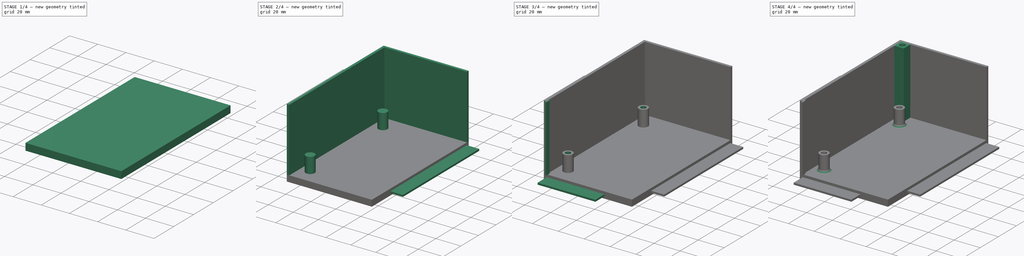
[diagram: build sequence overview — one tinted view per stage of 4, left to right]
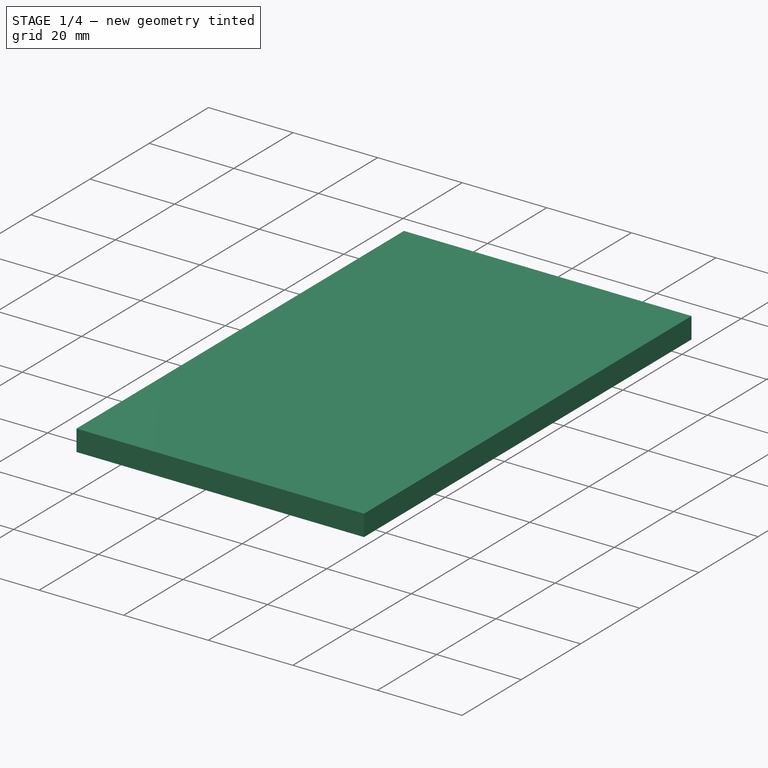
[diagram: stage 1 of 4 — iso view after this stage's code; geometry added in this stage tinted green]
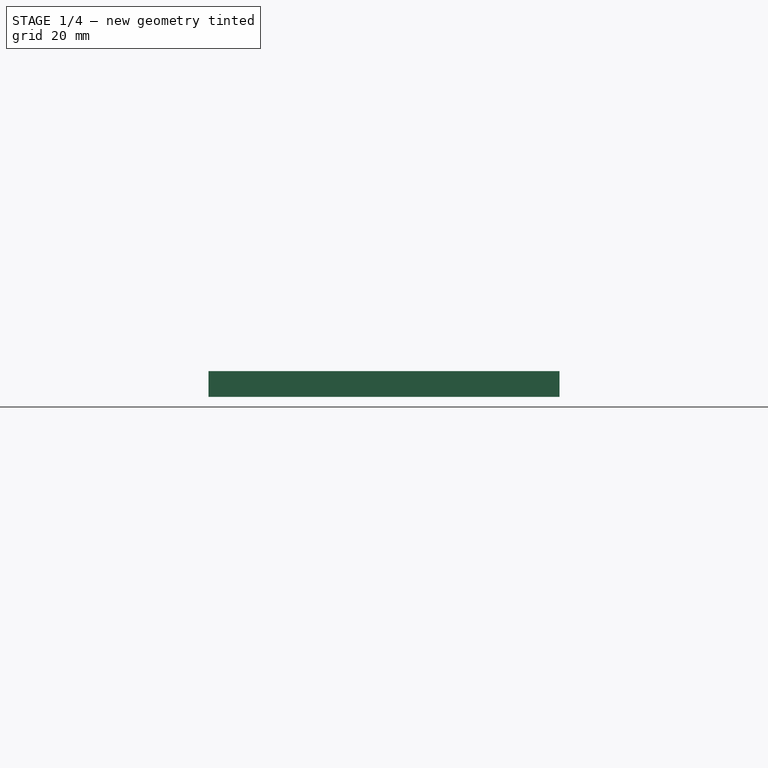
[diagram: stage 1 of 4 — front view after this stage's code; geometry added in this stage tinted green]
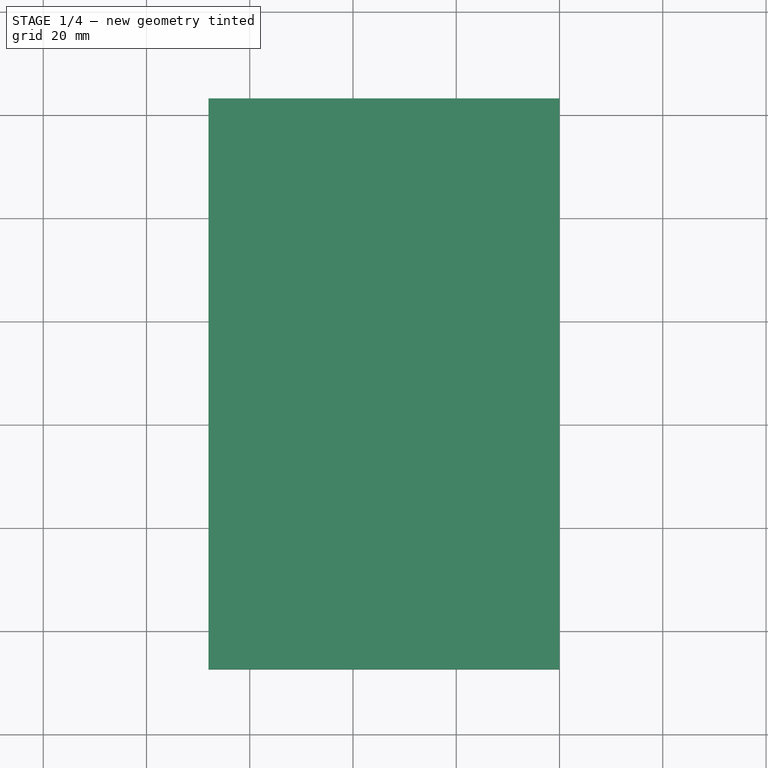
[diagram: stage 1 of 4 — top view after this stage's code; geometry added in this stage tinted green]
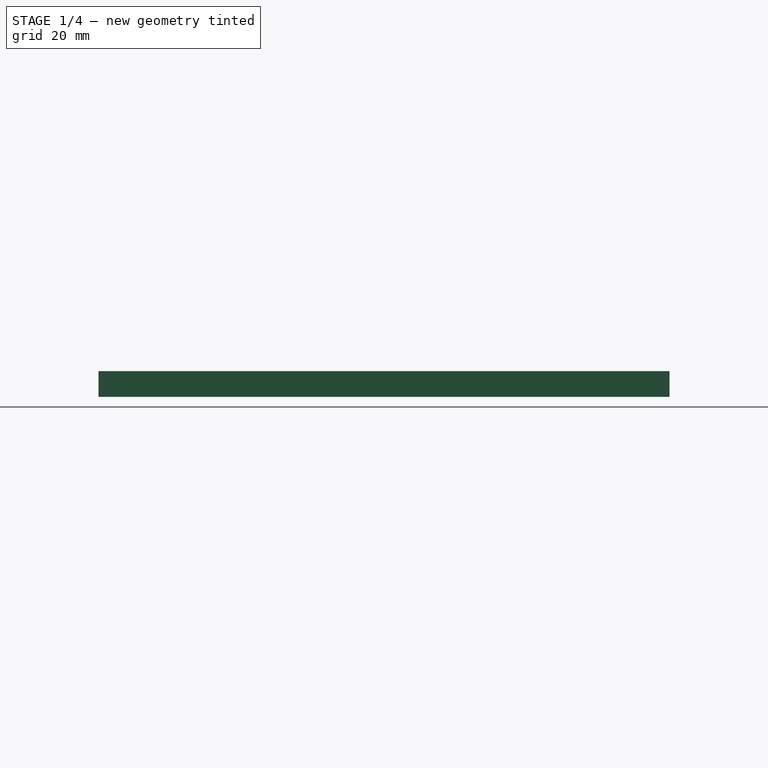
[diagram: stage 1 of 4 — right view after this stage's code; geometry added in this stage tinted green]
FCSTD DOCUMENT  (FreeCAD 2022.430R26244 +4758 (Git))
Label: SecondPartProcessor
License: All rights reserved
LicenseURL: http://en.wikipedia.org/wiki/All_rights_reserved
objects: Sketcher::SketchObject×11, PartDesign::Pad×9, PartDesign::Pocket×2, PartDesign::CoordinateSystem×1, PartDesign::Fillet×1, PartDesign::Body×1, App::Part×1
note: 49 computed .brp shape members not serialized (recipe doc carries the construction recipe); baked Part::Feature solids carry a one-line shape summary decoded from their .brp

FEATURE [PartDesign::CoordinateSystem] LCS_0
  AttacherType = Attacher::AttachEngine3D
  MapMode = 2
  Support = -> [X_Axis001]
  TreeRank = 0
FEATURE [Sketcher::SketchObject] Sketch_1
  FullyConstrained = true
  TreeRank = 0
  sketch-geometry (4):
    g0: LineSegment StartX=0 StartY=0 StartZ=0 EndX=-63 EndY=0 EndZ=0
    g1: LineSegment StartX=-63 StartY=0 StartZ=0 EndX=-63 EndY=93 EndZ=0
    g2: LineSegment StartX=-63 StartY=93 StartZ=0 EndX=0 EndY=93 EndZ=0
    g3: LineSegment StartX=0 StartY=93 StartZ=0 EndX=0 EndY=0 EndZ=0
  constraints (11):
    c: Coincident(g0,g1)
    c: Coincident(g1,g2)
    c: Coincident(g2,g3)
    c: Coincident(g3,g0)
    c: Horizontal(g0)
    c: Horizontal(g2)
    c: Vertical(g1)
    c: Vertical(g3)
    c: Coincident(g0,g-1)
    c: DistanceY(g3,g3) = 93
    c: DistanceX(g2,g2) = 63
FEATURE [PartDesign::Pad] Pad  label="MainSupport"
  AddSubType = 0
  CheckUpToFaceLimits = true
  ClaimChildren = false
  Direction = (0,0,1)
  Fit = 0
  FitJoin = 0
  InnerFit = 0
  InnerFitJoin = 0
  InnerTaperAngle = 0
  InnerTaperAngleRev = 0
  Length = 5
  Length2 = 100
  NewSolid = false
  Profile = -> Sketch_1
  Suppress = false
  TreeRank = 0
  Type = 0
  _ProfileBasedVersion = 0
FEATURE [Sketcher::SketchObject] Sketch
  ExternalGeometry = -> [Pad]
  FullyConstrained = true
  MapMode = 5
  Support = -> [XY_Plane001]
  TreeRank = 1
  sketch-geometry (4):
    g0: LineSegment StartX=0 StartY=0 StartZ=0 EndX=-63 EndY=4e-16 EndZ=0
    g1: LineSegment StartX=-63 StartY=4e-16 StartZ=0 EndX=-63 EndY=-7.4 EndZ=0
    g2: LineSegment StartX=0 StartY=-7.4 StartZ=0 EndX=0 EndY=0 EndZ=0
    g3: LineSegment StartX=0 StartY=-7.4 StartZ=0 EndX=-63 EndY=-7.4 EndZ=0
  constraints (10):
    c: Coincident(g0,g1)
    c: Coincident(g2,g0)
    c: Vertical(g1)
    c: Vertical(g2)
    c: Coincident(g0,g-1)
    c: Coincident(g0,g-3)
    c: DistanceY(g1,g1) = 7.4
    c: Coincident(g3,g1)
    c: Horizontal(g3)
    c: Coincident(g2,g3)
FEATURE [PartDesign::Pad] Pad001  label="ExtraGapSize"
  AddSubType = 0
  AlongSketchNormal = false
  BaseFeature = -> Pad
  CheckUpToFaceLimits = true
  ClaimChildren = false
  Direction = (0,0,1)
  Fit = 0
  FitJoin = 0
  InnerFit = 0
  InnerFitJoin = 0
  InnerTaperAngle = 0
  InnerTaperAngleRev = 0
  Length = 5
  Length2 = 100
  Linearize = true
  NewSolid = false
  Profile = -> Sketch
  Suppress = false
  TreeRank = 2
  Type = 0
  _ProfileBasedVersion = 1
FEATURE [Sketcher::SketchObject] Sketch001
  ExternalGeometry = -> [Pad001]
  FullyConstrained = true
  MapMode = 5
  Support = -> [XY_Plane001]
  TreeRank = 3
  sketch-geometry (6):
    g0: LineSegment StartX=-68 StartY=103.2 StartZ=0 EndX=-68 EndY=-7.4 EndZ=0
    g1: LineSegment StartX=-68 StartY=103.2 StartZ=0 EndX=0 EndY=103.2 EndZ=0
    g2: LineSegment StartX=-63 StartY=93 StartZ=0 EndX=0 EndY=93 EndZ=0
    g3: LineSegment StartX=0 StartY=93 StartZ=0 EndX=0 EndY=103.2 EndZ=0
    g4: LineSegment StartX=-68 StartY=-7.4 StartZ=0 EndX=-63 EndY=-7.4 EndZ=0
    g5: LineSegment StartX=-63 StartY=-7.4 StartZ=0 EndX=-63 EndY=93 EndZ=0
  constraints (16):
    c: Vertical(g0)
    c: Coincident(g1,g0)
    c: PointOnObject(g1,g-2)
    c: Horizontal(g1)
    c: Horizontal(g2)
    c: Coincident(g3,g2)
    c: Coincident(g3,g1)
    c: Coincident(g4,g0)
    c: Coincident(g5,g4)
    c: Coincident(g5,g2)
    c: Vertical(g5)
    c: DistanceX(g4,g4) = 5
    c: DistanceY(g3,g3) = 10.2
    c: Coincident(g2,g-3)
    c: Coincident(g4,g-4)
    c: Horizontal(g4)
FEATURE [PartDesign::Pad] Pad002  label="ExtraSideSize"
  AddSubType = 0
  AlongSketchNormal = false
  BaseFeature = -> Pad001
  CheckUpToFaceLimits = true
  ClaimChildren = false
  Direction = (0,0,1)
  Fit = 0
  FitJoin = 0
  InnerFit = 0
  InnerFitJoin = 0
  InnerTaperAngle = 0
  InnerTaperAngleRev = 0
  Length = 5
  Length2 = 100
  Linearize = true
  NewSolid = false
  Profile = -> Sketch001
  Suppress = false
  TreeRank = 4
  Type = 0
  _ProfileBasedVersion = 1
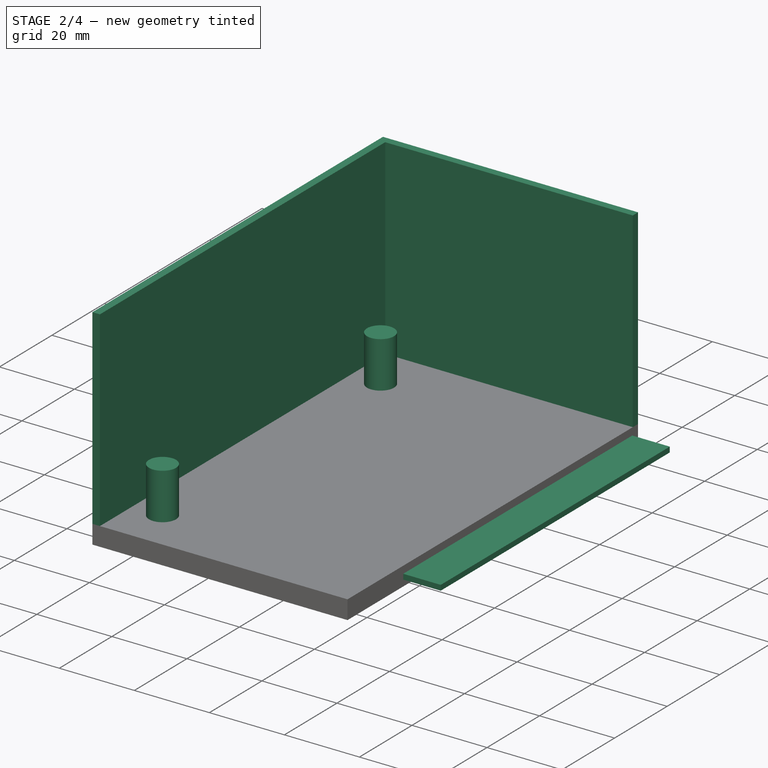
[diagram: stage 2 of 4 — iso view after this stage's code; geometry added in this stage tinted green]
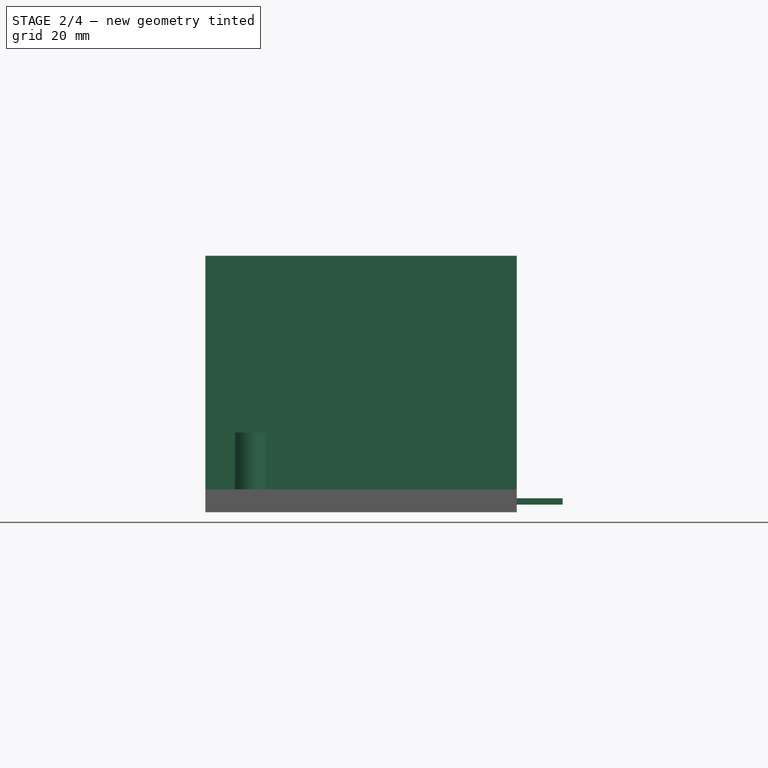
[diagram: stage 2 of 4 — front view after this stage's code; geometry added in this stage tinted green]
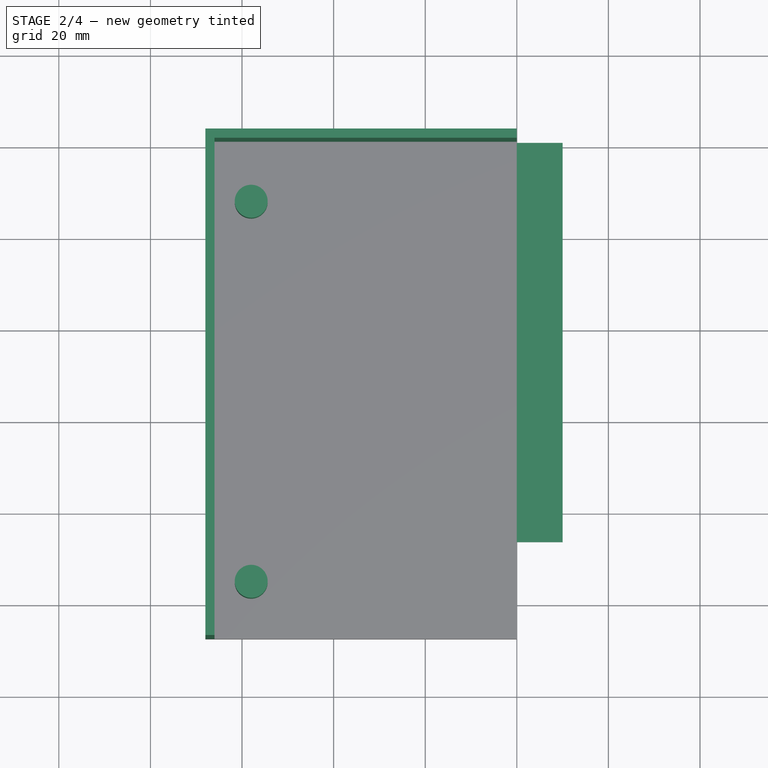
[diagram: stage 2 of 4 — top view after this stage's code; geometry added in this stage tinted green]
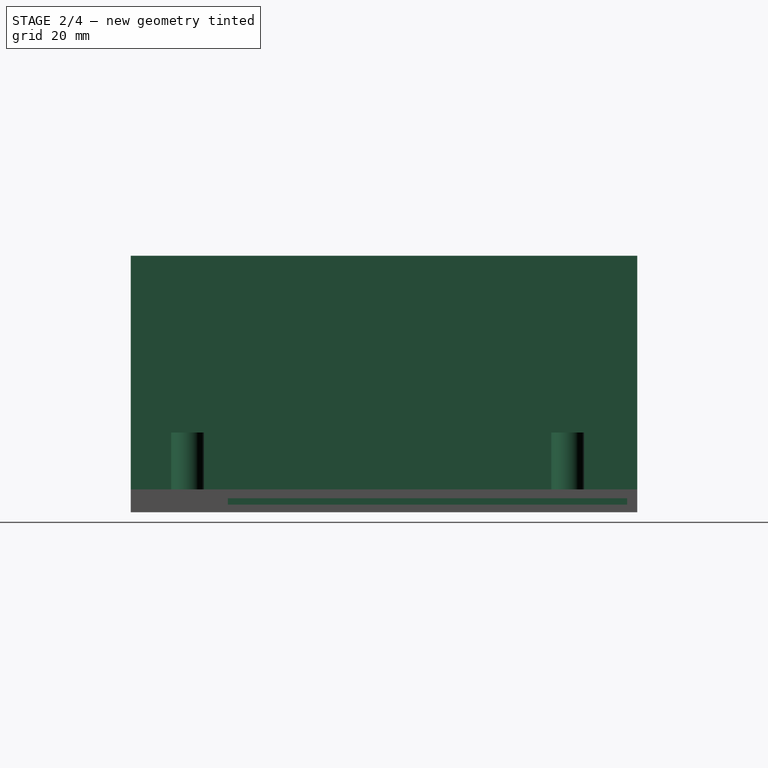
[diagram: stage 2 of 4 — right view after this stage's code; geometry added in this stage tinted green]
FEATURE [Sketcher::SketchObject] Sketch002
  ExternalGeometry = -> [Pad002]
  FullyConstrained = true
  MapMode = 5
  Placement = pos=(0,0,5) rot=(0,0,1;0rad)
  Support = -> [Pad002]
  TreeRank = 5
  sketch-geometry (6):
    g0: LineSegment StartX=-68 StartY=103.2 StartZ=0 EndX=-68 EndY=-7.4 EndZ=0
    g1: LineSegment StartX=0 StartY=103.2 StartZ=0 EndX=-68 EndY=103.2 EndZ=0
    g2: LineSegment StartX=-68 StartY=-7.4 StartZ=0 EndX=-66 EndY=-7.4 EndZ=0
    g3: LineSegment StartX=-66 StartY=-7.4 StartZ=0 EndX=-66 EndY=101.2 EndZ=0
    g4: LineSegment StartX=-66 StartY=101.2 StartZ=0 EndX=0 EndY=101.2 EndZ=0
    g5: LineSegment StartX=0 StartY=103.2 StartZ=0 EndX=0 EndY=101.2 EndZ=0
  constraints (16):
    c: Coincident(g1,g0)
    c: Horizontal(g1)
    c: Coincident(g0,g-3)
    c: Coincident(g2,g0)
    c: Coincident(g3,g2)
    c: Vertical(g3)
    c: Coincident(g4,g3)
    c: PointOnObject(g4,g-2)
    c: Horizontal(g4)
    c: PointOnObject(g1,g-2)
    c: Coincident(g5,g1)
    c: Coincident(g5,g4)
    c: DistanceY(g5,g5) = 2
    c: DistanceX(g2,g2) = 2
    c: Coincident(g0,g-3)
    c: Horizontal(g2)
FEATURE [PartDesign::Pad] Pad003  label="SidePanel"
  AddSubType = 0
  AlongSketchNormal = false
  BaseFeature = -> Pad002
  CheckUpToFaceLimits = true
  ClaimChildren = false
  Direction = (0,0,1)
  Fit = 0
  FitJoin = 0
  InnerFit = 0
  InnerFitJoin = 0
  InnerTaperAngle = 0
  InnerTaperAngleRev = 0
  Length = 51
  Length2 = 100
  Linearize = true
  NewSolid = false
  Profile = -> Sketch002
  Suppress = false
  TreeRank = 6
  Type = 0
  _ProfileBasedVersion = 1
FEATURE [Sketcher::SketchObject] Sketch005
  ExternalGeometry = -> [Pad003]
  FullyConstrained = true
  MapMode = 5
  Placement = pos=(0,0,0) rot=(0.57735,0.57735,0.57735;2.0944rad)
  TreeRank = 11
  sketch-geometry (4):
    g0: LineSegment StartX=101 StartY=3.06 StartZ=0 EndX=13.8 EndY=3.06 EndZ=0
    g1: LineSegment StartX=13.8 StartY=3.06 StartZ=0 EndX=13.8 EndY=1.66 EndZ=0
    g2: LineSegment StartX=13.8 StartY=1.66 StartZ=0 EndX=101 EndY=1.66 EndZ=0
    g3: LineSegment StartX=101 StartY=1.66 StartZ=0 EndX=101 EndY=3.06 EndZ=0
  constraints (12):
    c: Coincident(g0,g1)
    c: Coincident(g1,g2)
    c: Coincident(g2,g3)
    c: Coincident(g3,g0)
    c: Horizontal(g0)
    c: Horizontal(g2)
    c: Vertical(g1)
    c: Vertical(g3)
    c: DistanceY(g1,g1) = 1.4
    c: DistanceX(g0,g-3) = 2.2
    c: DistanceY(g0,g-3) = 1.94
    c: DistanceX(g-4,g0) = 21.2
FEATURE [PartDesign::Pad] Pad005  label="Puzzle1"
  AddSubType = 0
  AlongSketchNormal = false
  BaseFeature = -> Pad003
  CheckUpToFaceLimits = true
  ClaimChildren = false
  Direction = (1,1e-16,-1e-16)
  Fit = 0
  FitJoin = 0
  InnerFit = 0
  InnerFitJoin = 0
  InnerTaperAngle = 0
  InnerTaperAngleRev = 0
  Length = 10
  Length2 = 100
  Linearize = true
  NewSolid = false
  Profile = -> Sketch005
  Suppress = false
  TreeRank = 12
  Type = 0
  _ProfileBasedVersion = 1
FEATURE [Sketcher::SketchObject] Sketch006
  ExternalGeometry = -> [Pad005]
  FullyConstrained = true
  MapMode = 5
  Placement = pos=(0,0,5) rot=(0,0,1;0rad)
  Support = -> [Pad005]
  TreeRank = 13
  sketch-geometry (2):
    g0: Circle CenterX=-58 CenterY=5 CenterZ=0 NormalX=0 NormalY=0 NormalZ=1 AngleXU=0 Radius=3.6
    g1: Circle CenterX=-58 CenterY=88 CenterZ=0 NormalX=0 NormalY=0 NormalZ=1 AngleXU=0 Radius=3.6
  constraints (6):
    c: Diameter(g1) = 7.2
    c: Diameter(g0) = 7.2
    c: DistanceX(g-3,g1) = 5
    c: DistanceY(g1,g-3) = 5
    c: DistanceY(g-3,g0) = 5
    c: DistanceX(g-3,g0) = 5
FEATURE [PartDesign::Pad] Pad006  label="ProcessorColumn"
  AddSubType = 0
  AlongSketchNormal = false
  BaseFeature = -> Pad005
  CheckUpToFaceLimits = true
  ClaimChildren = false
  Direction = (0,0,1)
  Fit = 0
  FitJoin = 0
  InnerFit = 0
  InnerFitJoin = 0
  InnerTaperAngle = 0
  InnerTaperAngleRev = 0
  Length = 12.4
  Length2 = 100
  Linearize = true
  NewSolid = false
  Profile = -> Sketch006
  Suppress = false
  TreeRank = 14
  Type = 0
  _ProfileBasedVersion = 1
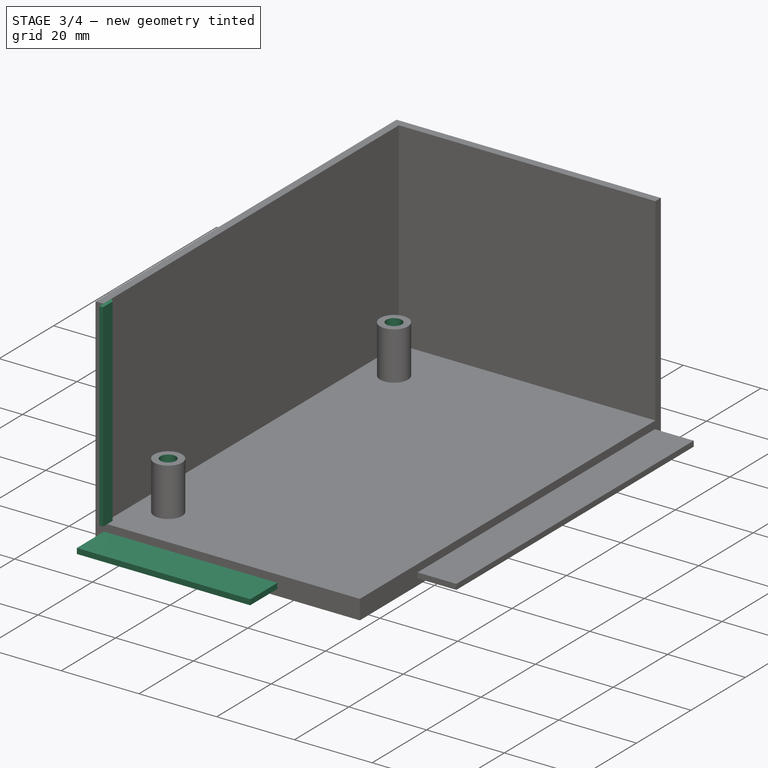
[diagram: stage 3 of 4 — iso view after this stage's code; geometry added in this stage tinted green]
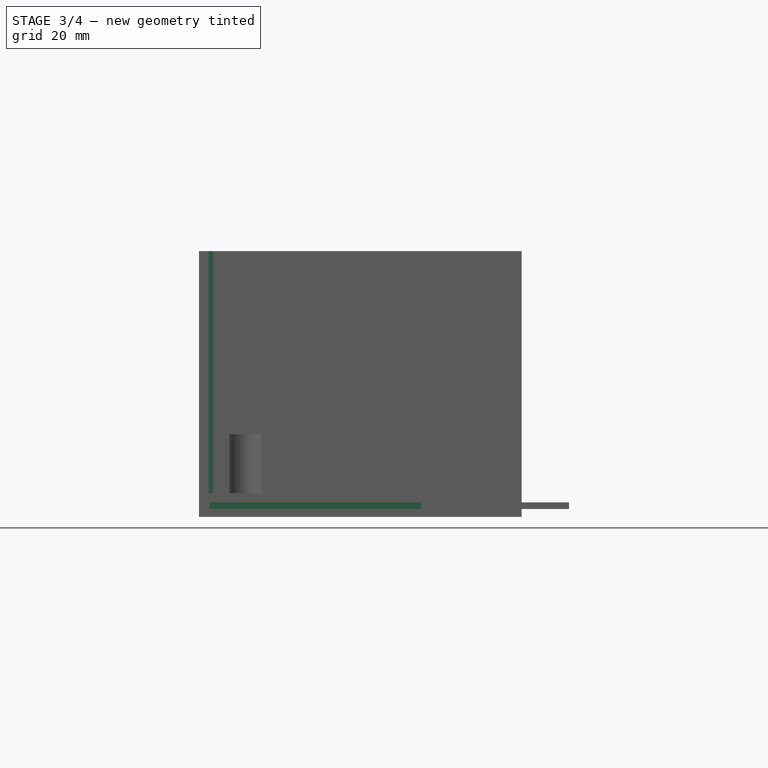
[diagram: stage 3 of 4 — front view after this stage's code; geometry added in this stage tinted green]
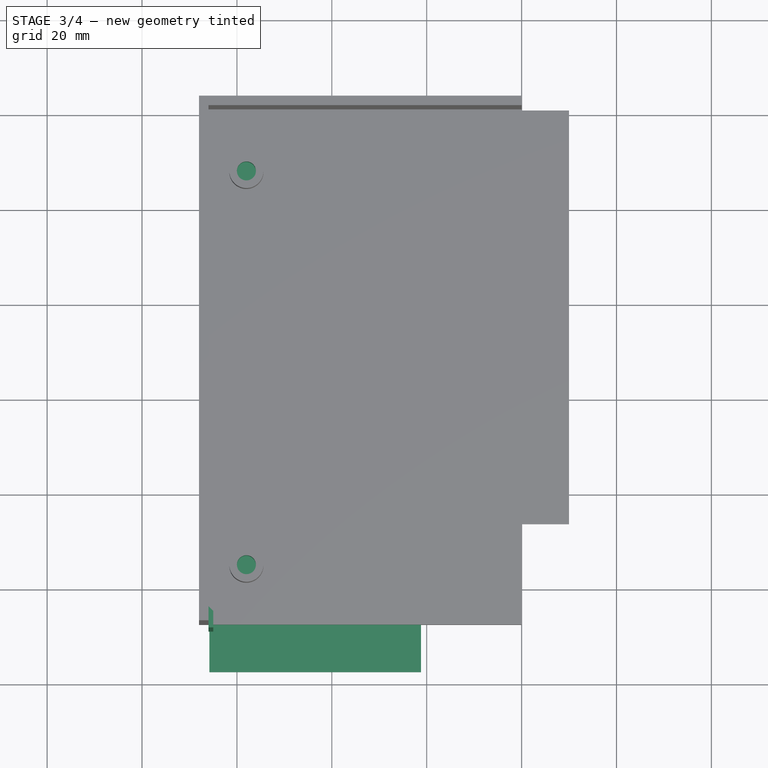
[diagram: stage 3 of 4 — top view after this stage's code; geometry added in this stage tinted green]
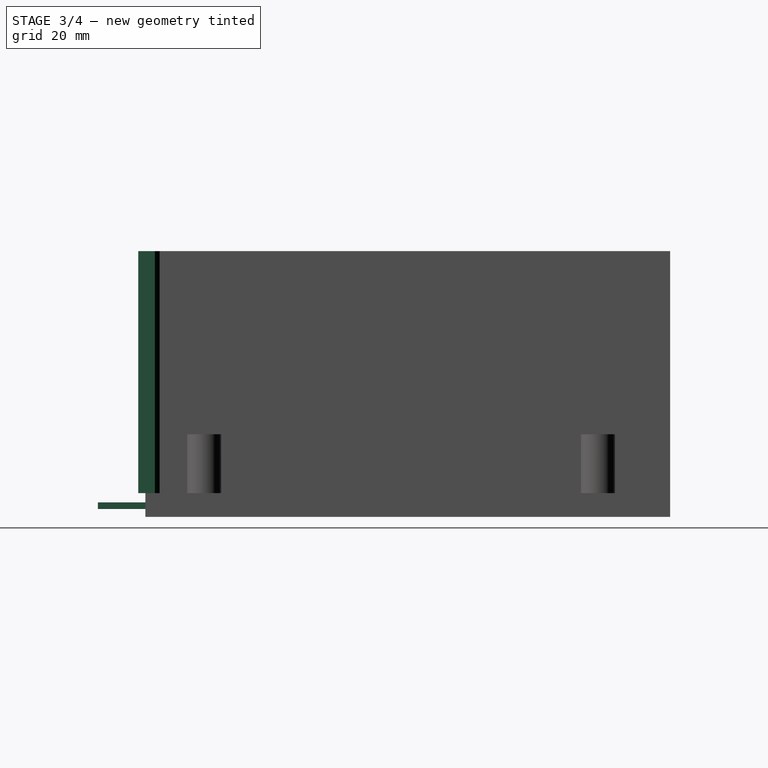
[diagram: stage 3 of 4 — right view after this stage's code; geometry added in this stage tinted green]
FEATURE [Sketcher::SketchObject] Sketch007
  ExternalGeometry = -> [Pad006]
  FullyConstrained = true
  MapMode = 5
  Placement = pos=(0,0,17.4) rot=(0,0,1;0rad)
  Support = -> [Pad006]
  TreeRank = 15
  sketch-geometry (2):
    g0: Circle CenterX=-58 CenterY=5 CenterZ=0 NormalX=0 NormalY=0 NormalZ=1 AngleXU=0 Radius=2
    g1: Circle CenterX=-58 CenterY=88 CenterZ=0 NormalX=0 NormalY=0 NormalZ=1 AngleXU=0 Radius=2
  constraints (4):
    c: Coincident(g0,g-3)
    c: Coincident(g1,g-4)
    c: Diameter(g1) = 4
    c: Diameter(g0) = 4
FEATURE [PartDesign::Pocket] Pocket001  label="ColumnInsertHole"
  AddSubType = 1
  BaseFeature = -> Pad006
  CheckUpToFaceLimits = true
  ClaimChildren = false
  Fit = 0
  FitJoin = 0
  InnerFit = 0
  InnerFitJoin = 0
  InnerTaperAngle = 0
  InnerTaperAngleRev = 0
  Length = 6.7
  Length2 = 100
  Linearize = true
  NewSolid = false
  Profile = -> Sketch007
  Suppress = false
  TreeRank = 16
  Type = 0
  _ProfileBasedVersion = 1
  _Version = 1
FEATURE [Sketcher::SketchObject] Sketch008
  ExternalGeometry = -> [Pocket001]
  FullyConstrained = true
  MapMode = 5
  Placement = pos=(0,-7.4,0) rot=(1,0,0;1.5708rad)
  Support = -> [Pocket001]
  TreeRank = 17
  sketch-geometry (4):
    g0: LineSegment StartX=-65.8 StartY=3.06 StartZ=0 EndX=-21.2 EndY=3.06 EndZ=0
    g1: LineSegment StartX=-21.2 StartY=3.06 StartZ=0 EndX=-21.2 EndY=1.66 EndZ=0
    g2: LineSegment StartX=-21.2 StartY=1.66 StartZ=0 EndX=-65.8 EndY=1.66 EndZ=0
    g3: LineSegment StartX=-65.8 StartY=1.66 StartZ=0 EndX=-65.8 EndY=3.06 EndZ=0
  constraints (12):
    c: Coincident(g0,g1)
    c: Coincident(g1,g2)
    c: Coincident(g2,g3)
    c: Coincident(g3,g0)
    c: Horizontal(g0)
    c: Horizontal(g2)
    c: Vertical(g1)
    c: Vertical(g3)
    c: DistanceY(g0,g-3) = 1.94
    c: DistanceY(g1,g1) = 1.4
    c: DistanceX(g-4,g0) = 2.2
    c: DistanceX(g0,g-3) = 21.2
FEATURE [PartDesign::Pad] Pad007  label="Puzzle2"
  AddSubType = 0
  AlongSketchNormal = false
  BaseFeature = -> Pocket001
  CheckUpToFaceLimits = true
  ClaimChildren = false
  Direction = (0,-1,2e-16)
  Fit = 0
  FitJoin = 0
  InnerFit = 0
  InnerFitJoin = 0
  InnerTaperAngle = 0
  InnerTaperAngleRev = 0
  Length = 10
  Length2 = 100
  Linearize = true
  NewSolid = false
  Profile = -> Sketch008
  Suppress = false
  TreeRank = 18
  Type = 0
  _ProfileBasedVersion = 1
FEATURE [Sketcher::SketchObject] Sketch009
  ExternalGeometry = -> [Pad007]
  FullyConstrained = true
  MapMode = 5
  Placement = pos=(0,0,5) rot=(0,0,1;0rad)
  Support = -> [Pad007]
  TreeRank = 19
  sketch-geometry (6):
    g0: LineSegment [constr] StartX=-66 StartY=-5.4 StartZ=0 EndX=-65 EndY=-5.4 EndZ=0
    g1: LineSegment StartX=-65 StartY=-5.4 StartZ=0 EndX=-65 EndY=-8.9 EndZ=0
    g2: LineSegment StartX=-65 StartY=-8.9 StartZ=0 EndX=-66 EndY=-8.9 EndZ=0
    g3: LineSegment StartX=-66 StartY=-8.9 StartZ=0 EndX=-66 EndY=-5.4 EndZ=0
    g4: LineSegment StartX=-65 StartY=-5.4 StartZ=0 EndX=-66 EndY=-4.4 EndZ=0
    g5: LineSegment StartX=-66 StartY=-5.4 StartZ=0 EndX=-66 EndY=-4.4 EndZ=0
  constraints (17):
    c: Coincident(g0,g1)
    c: Coincident(g1,g2)
    c: Coincident(g2,g3)
    c: Coincident(g3,g0)
    c: Horizontal(g0)
    c: Horizontal(g2)
    c: Vertical(g1)
    c: Vertical(g3)
    c: PointOnObject(g0,g-3)
    c: DistanceY(g-3,g0) = 2
    c: DistanceY(g1,g-3) = 1.5
    c: DistanceX(g0,g0) = 1
    c: Coincident(g4,g1)
    c: PointOnObject(g4,g-3)
    c: Coincident(g5,g3)
    c: Coincident(g5,g4)
    c: Angle(g4,g0) = 0.785398
FEATURE [PartDesign::Pad] Pad008  label="PanelGuard"
  AddSubType = 0
  AlongSketchNormal = false
  BaseFeature = -> Pad007
  CheckUpToFaceLimits = true
  ClaimChildren = false
  Direction = (0,0,1)
  Fit = 0
  FitJoin = 0
  InnerFit = 0
  InnerFitJoin = 0
  InnerTaperAngle = 0
  InnerTaperAngleRev = 0
  Length = 10
  Length2 = 100
  Linearize = true
  NewSolid = false
  Profile = -> Sketch009
  Suppress = false
  TreeRank = 20
  Type = 3
  UpToFace = -> Pad007 [Face30]
  _ProfileBasedVersion = 1
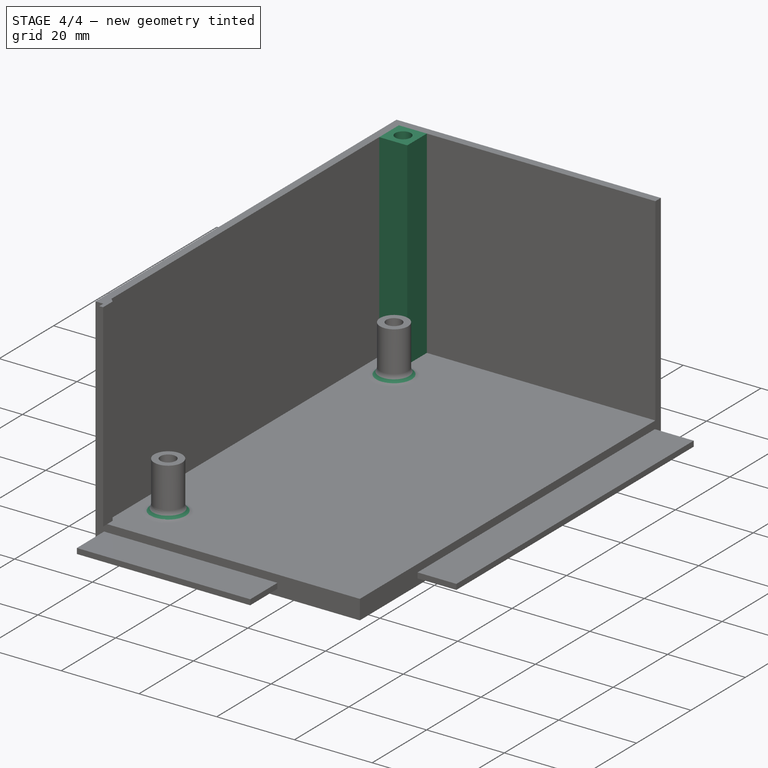
[diagram: stage 4 of 4 — iso view after this stage's code; geometry added in this stage tinted green]
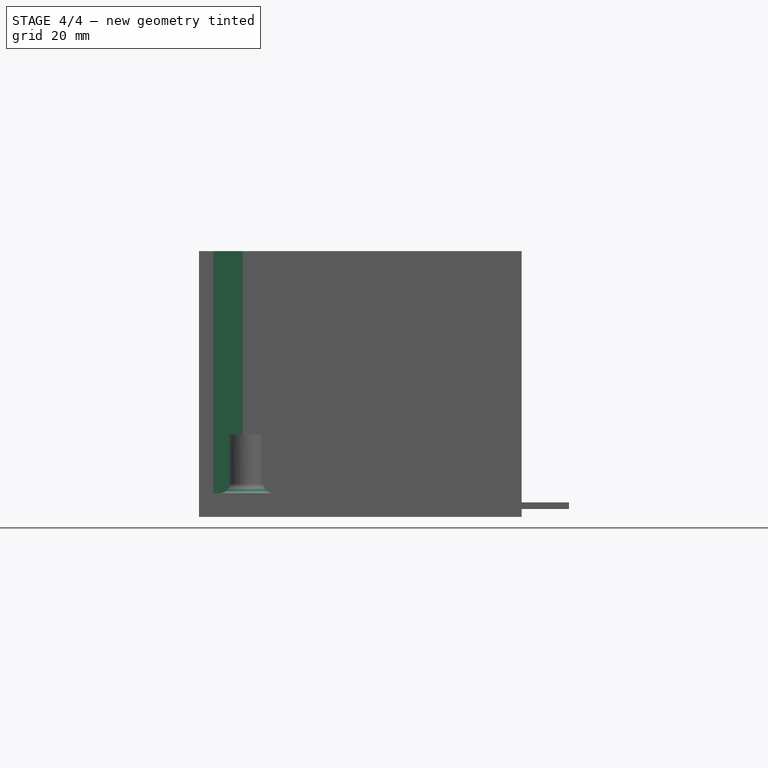
[diagram: stage 4 of 4 — front view after this stage's code; geometry added in this stage tinted green]
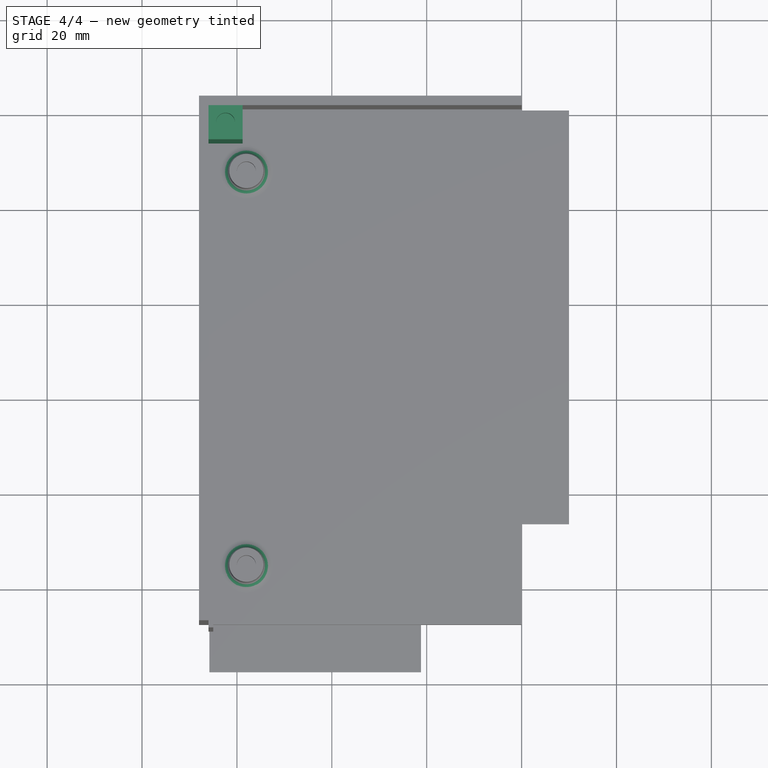
[diagram: stage 4 of 4 — top view after this stage's code; geometry added in this stage tinted green]
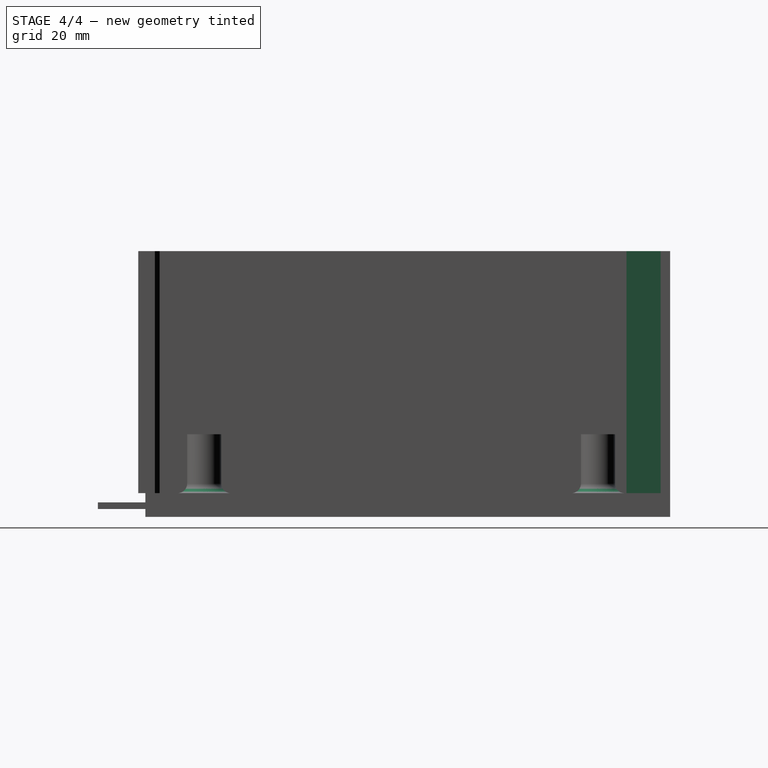
[diagram: stage 4 of 4 — right view after this stage's code; geometry added in this stage tinted green]
FEATURE [Sketcher::SketchObject] Sketch010
  ExternalGeometry = -> [Pad008]
  FullyConstrained = true
  MapMode = 5
  Placement = pos=(0,0,5) rot=(0,0,1;0rad)
  Support = -> [Pad008]
  TreeRank = 21
  sketch-geometry (4):
    g0: LineSegment StartX=-66 StartY=101.2 StartZ=0 EndX=-58.8 EndY=101.2 EndZ=0
    g1: LineSegment StartX=-58.8 StartY=101.2 StartZ=0 EndX=-58.8 EndY=94 EndZ=0
    g2: LineSegment StartX=-58.8 StartY=94 StartZ=0 EndX=-66 EndY=94 EndZ=0
    g3: LineSegment StartX=-66 StartY=94 StartZ=0 EndX=-66 EndY=101.2 EndZ=0
  constraints (11):
    c: Coincident(g0,g1)
    c: Coincident(g1,g2)
    c: Coincident(g2,g3)
    c: Coincident(g3,g0)
    c: Horizontal(g0)
    c: Horizontal(g2)
    c: Vertical(g1)
    c: Vertical(g3)
    c: Coincident(g0,g-4)
    c: DistanceY(g1,g1) = 7.2
    c: Equal(g1,g2)
FEATURE [PartDesign::Pad] Pad009  label="ColumnPart"
  AddSubType = 0
  AlongSketchNormal = false
  BaseFeature = -> Pad008
  CheckUpToFaceLimits = true
  ClaimChildren = false
  Direction = (0,0,1)
  Fit = 0
  FitJoin = 0
  InnerFit = 0
  InnerFitJoin = 0
  InnerTaperAngle = 0
  InnerTaperAngleRev = 0
  Length = 10
  Length2 = 100
  Linearize = true
  NewSolid = false
  Profile = -> Sketch010
  Suppress = false
  TreeRank = 22
  Type = 3
  UpToFace = -> Pad008 [Face31]
  _ProfileBasedVersion = 1
FEATURE [Sketcher::SketchObject] Sketch011
  ExternalGeometry = -> [Pad009]
  FullyConstrained = true
  MapMode = 5
  Placement = pos=(0,0,56) rot=(0,0,1;0rad)
  Support = -> [Pad009]
  TreeRank = 23
  sketch-geometry (3):
    g0: LineSegment [constr] StartX=-58.8 StartY=97.6 StartZ=0 EndX=-62.4 EndY=97.6 EndZ=0
    g1: LineSegment [constr] StartX=-62.4 StartY=97.6 StartZ=0 EndX=-62.4 EndY=94 EndZ=0
    g2: Circle CenterX=-62.4 CenterY=97.6 CenterZ=0 NormalX=0 NormalY=0 NormalZ=1 AngleXU=0 Radius=2
  constraints (7):
    c: Horizontal(g0)
    c: Coincident(g1,g0)
    c: Vertical(g1)
    c: Symmetric(g-3,g-4,g0)
    c: Symmetric(g-4,g-4,g1)
    c: Coincident(g2,g0)
    c: Diameter(g2) = 4
FEATURE [PartDesign::Pocket] Pocket  label="ColumnPartHole"
  AddSubType = 1
  BaseFeature = -> Pad009
  CheckUpToFaceLimits = true
  ClaimChildren = false
  Fit = 0
  FitJoin = 0
  InnerFit = 0
  InnerFitJoin = 0
  InnerTaperAngle = 0
  InnerTaperAngleRev = 0
  Length = 6.7
  Length2 = 100
  Linearize = true
  NewSolid = false
  Profile = -> Sketch011
  Suppress = false
  TreeRank = 24
  Type = 0
  _ProfileBasedVersion = 1
  _Version = 1
FEATURE [PartDesign::Fillet] Fillet
  AddSubType = 0
  Base = -> Pocket [Edge46,Edge47]
  BaseFeature = -> Pocket
  NewSolid = false
  Radius = 2
  SupportTransform = false
  Suppress = false
  TreeRank = 25
FEATURE [PartDesign::Body] Body
  AutoGroupSolids = false
  ClaimAllChildren = false
  ExportMode = 0
  Group = -> [LCS_0,Sketch_1,Pad,Sketch,Pad001,Sketch001,Pad002,Sketch002,Pad003,Sketch005,Pad005,Sketch006,Pad006,Sketch007,Pocket001,Sketch008,Pad007,Sketch009,Pad008,Sketch010,Pad009,Sketch011,Pocket,Fillet]
  Origin = -> Origin001
  Tip = -> Fillet
  TreeRank = 0
  _ExportChildren = -> [LCS_0,Pad,Pad001,Pad002,Pad003,Pad005,Pad006,Pocket001,Pad007,Pad008,Pad009,Pocket,Fillet]
  _GroupVersion = 1
FEATURE [App::Part] Part  label="SecondPartProcessor"
  ClaimAllChildren = false
  ExportMode = 1
  Group = -> [Body]
  Origin = -> Origin
  TreeRank = 0
  _ExportChildren = -> [Body]
  _GroupVersion = 1
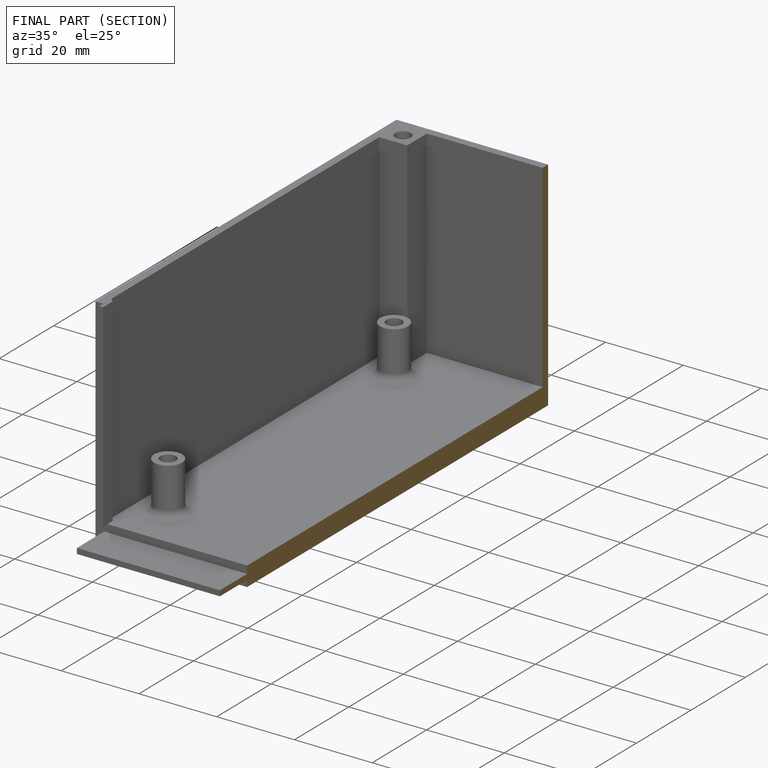
[diagram: finished part — half-section view (interior)]
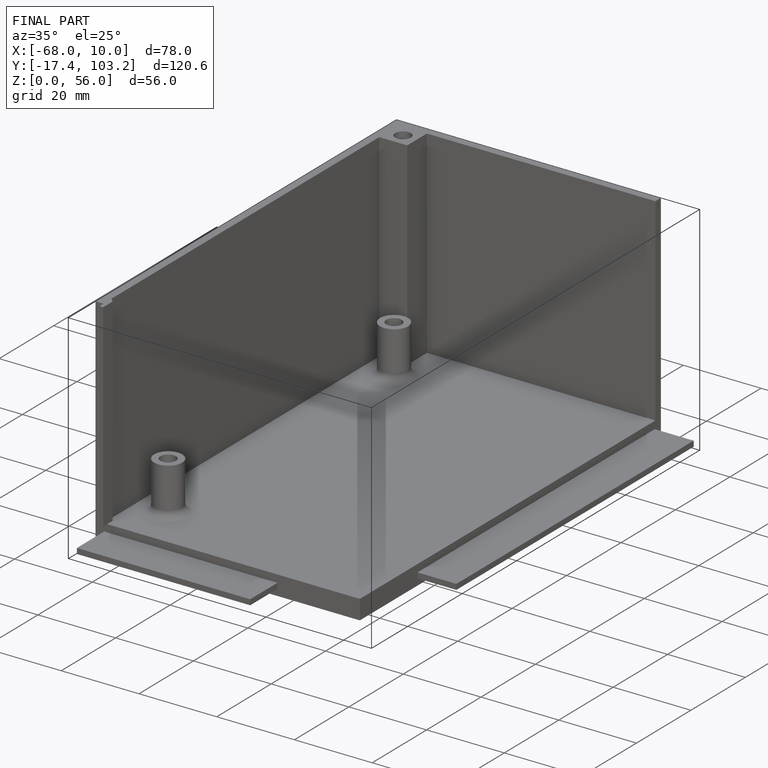
[diagram: finished part — iso view with bounding-box wireframe]
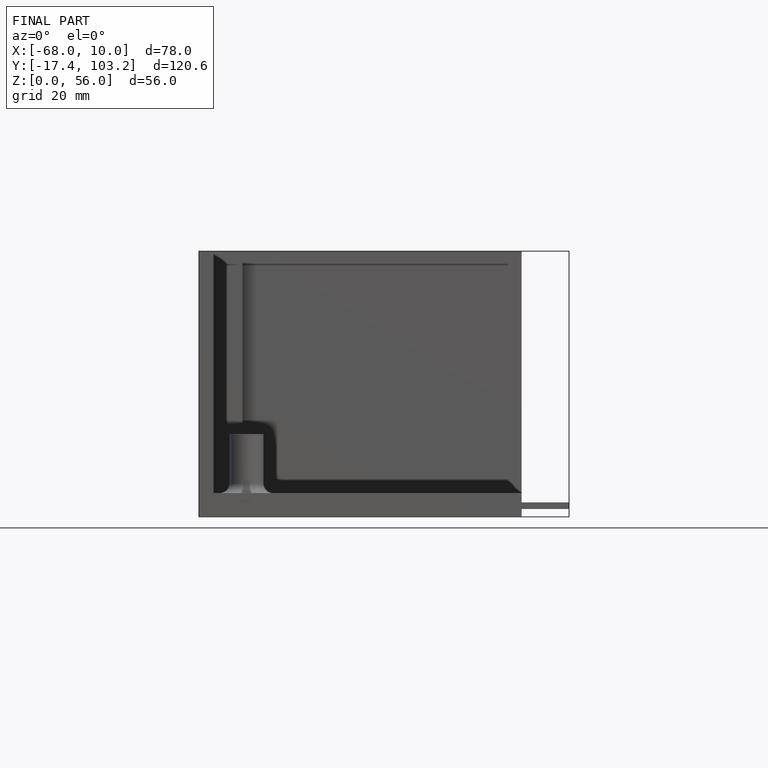
[diagram: finished part — front view with bounding-box wireframe]
